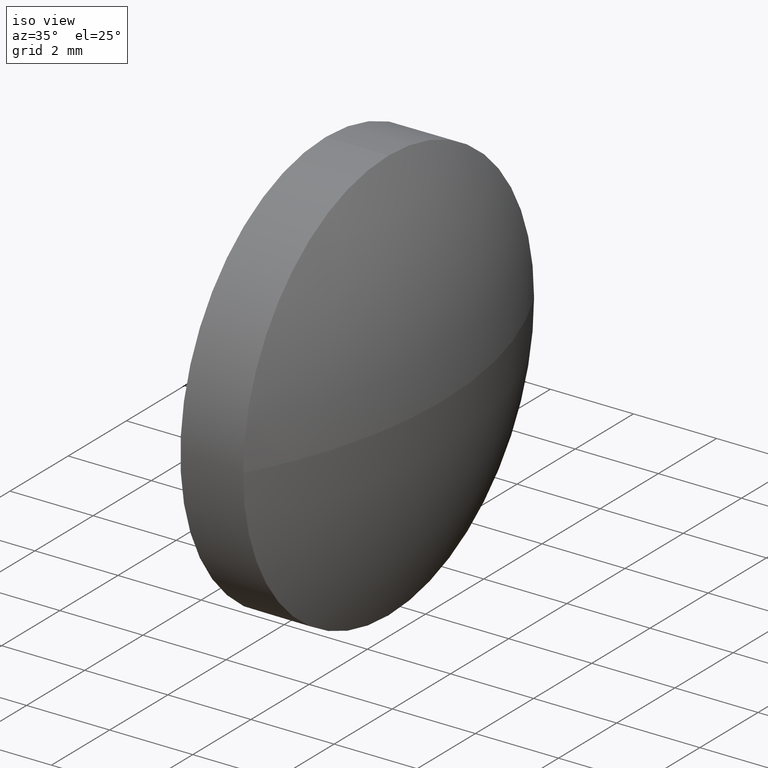
[diagram: clean part render]
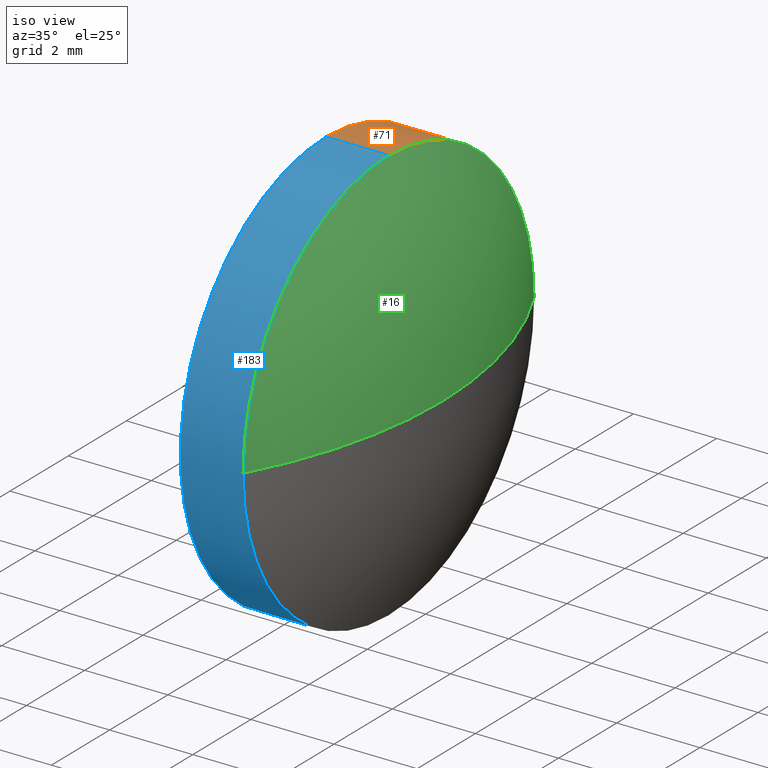
[diagram: same view with three faces highlighted in distinct colors, each labeled with its STEP entity id]
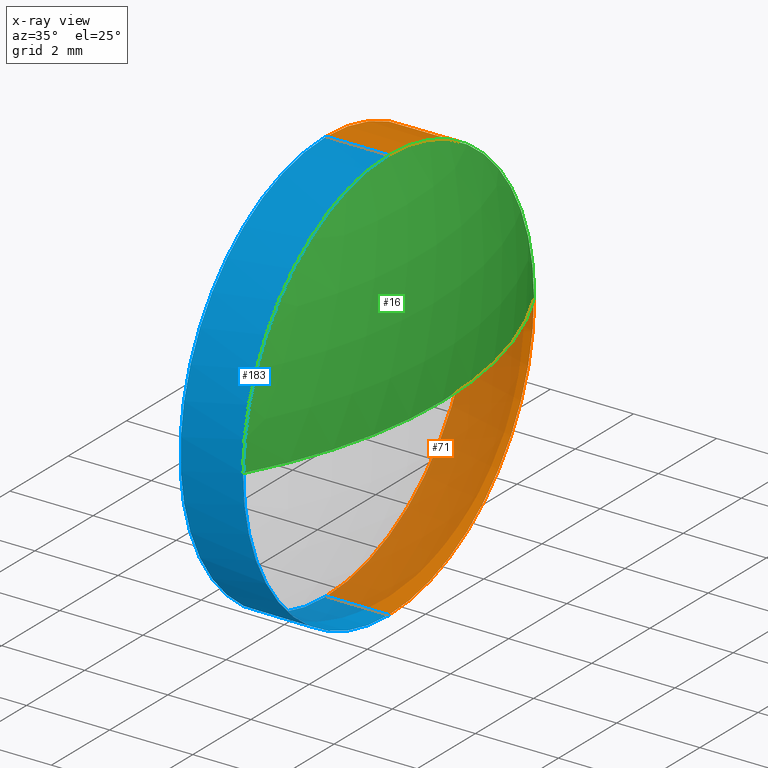
[diagram: x-ray of the same camera — body ghosted, the three highlighted faces saturated]
A machine part, iso view with three faces highlighted in distinct colors.
The next image is the same camera in x-ray (body ghosted, the three faces saturated) — at least one of them is partly hidden behind the body in this view.
Their STEP definitions:

[orange] entity #71 — the highlighted cylindrical surface (partial cylindrical patch) has radius 5 mm, axis along (-1, -0, -0).
#2 = DIRECTION ( 'NONE',  ( -1.000000000000000000, -0.0000000000000000000, -0.0000000000000000000 ) ) ;
#7 = EDGE_CURVE ( 'NONE', #153, #108, #60, .T. ) ;
#9 = ORIENTED_EDGE ( 'NONE', *, *, #114, .T. ) ;
#12 = CYLINDRICAL_SURFACE ( 'NONE', #168, 5.000000000000004400 ) ;
#17 = EDGE_CURVE ( 'NONE', #153, #81, #172, .T. ) ;
#20 = VERTEX_POINT ( 'NONE', #104 ) ;
#22 = ORIENTED_EDGE ( 'NONE', *, *, #7, .T. ) ;
#23 = LINE ( 'NONE', #50, #41 ) ;
#35 = CARTESIAN_POINT ( 'NONE',  ( 491.3935564793571900, 43.15636075815854200, 0.0000000000000000000 ) ) ;
#38 = AXIS2_PLACEMENT_3D ( 'NONE', #68, #109, #77 ) ;
#41 = VECTOR ( 'NONE', #137, 1000.000000000000000 ) ;
#50 = CARTESIAN_POINT ( 'NONE',  ( 491.3935564793571900, 43.15636075815854200, -5.000000000000004400 ) ) ;
#51 = DIRECTION ( 'NONE',  ( -1.000000000000000000, -0.0000000000000000000, -0.0000000000000000000 ) ) ;
#57 = AXIS2_PLACEMENT_3D ( 'NONE', #89, #101, #174 ) ;
#58 = ORIENTED_EDGE ( 'NONE', *, *, #91, .F. ) ;
#60 = CIRCLE ( 'NONE', #57, 5.000000000000004400 ) ;
#64 = CARTESIAN_POINT ( 'NONE',  ( 493.7012287334225700, 43.15636075815854200, 0.0000000000000000000 ) ) ;
#67 = AXIS2_PLACEMENT_3D ( 'NONE', #64, #51, #96 ) ;
#68 = CARTESIAN_POINT ( 'NONE',  ( 492.1912287334225800, 43.15636075815854200, 0.0000000000000000000 ) ) ;
#71 = ADVANCED_FACE ( 'NONE', ( #83 ), #12, .T. ) ;
#76 = EDGE_CURVE ( 'NONE', #108, #20, #79, .T. ) ;
#77 = DIRECTION ( 'NONE',  ( 0.0000000000000000000, 0.0000000000000000000, 1.000000000000000000 ) ) ;
#79 = CIRCLE ( 'NONE', #67, 5.000000000000004400 ) ;
#81 = VERTEX_POINT ( 'NONE', #151 ) ;
#83 = FACE_OUTER_BOUND ( 'NONE', #84, .T. ) ;
#84 = EDGE_LOOP ( 'NONE', ( #146, #9, #58, #185, #22 ) ) ;
#89 = CARTESIAN_POINT ( 'NONE',  ( 493.7012287334225700, 43.15636075815854200, 0.0000000000000000000 ) ) ;
#91 = EDGE_CURVE ( 'NONE', #81, #160, #99, .T. ) ;
#96 = DIRECTION ( 'NONE',  ( 0.0000000000000000000, 0.0000000000000000000, 1.000000000000000000 ) ) ;
#99 = CIRCLE ( 'NONE', #38, 5.000000000000004400 ) ;
#101 = DIRECTION ( 'NONE',  ( -1.000000000000000000, -0.0000000000000000000, -0.0000000000000000000 ) ) ;
#104 = CARTESIAN_POINT ( 'NONE',  ( 493.7012287334225700, 43.15636075815854200, -5.000000000000004400 ) ) ;
#105 = CARTESIAN_POINT ( 'NONE',  ( 493.7012287334225700, 48.15636075815855600, 6.123233995736746600E-016 ) ) ;
#108 = VERTEX_POINT ( 'NONE', #105 ) ;
#109 = DIRECTION ( 'NONE',  ( -1.000000000000000000, -0.0000000000000000000, -0.0000000000000000000 ) ) ;
#114 = EDGE_CURVE ( 'NONE', #20, #160, #23, .T. ) ;
#118 = CARTESIAN_POINT ( 'NONE',  ( 491.3935564793571900, 43.15636075815854200, 5.000000000000004400 ) ) ;
#122 = DIRECTION ( 'NONE',  ( 0.0000000000000000000, 0.0000000000000000000, 1.000000000000000000 ) ) ;
#123 = CARTESIAN_POINT ( 'NONE',  ( 493.7012287334225700, 43.15636075815854200, 5.000000000000004400 ) ) ;
#137 = DIRECTION ( 'NONE',  ( -1.000000000000000000, -0.0000000000000000000, -0.0000000000000000000 ) ) ;
#146 = ORIENTED_EDGE ( 'NONE', *, *, #76, .T. ) ;
#150 = CARTESIAN_POINT ( 'NONE',  ( 492.1912287334225800, 43.15636075815854200, -5.000000000000004400 ) ) ;
#151 = CARTESIAN_POINT ( 'NONE',  ( 492.1912287334225800, 43.15636075815854200, 5.000000000000004400 ) ) ;
#153 = VERTEX_POINT ( 'NONE', #123 ) ;
#160 = VERTEX_POINT ( 'NONE', #150 ) ;
#161 = VECTOR ( 'NONE', #2, 1000.000000000000000 ) ;
#167 = DIRECTION ( 'NONE',  ( -1.000000000000000000, -0.0000000000000000000, -0.0000000000000000000 ) ) ;
#168 = AXIS2_PLACEMENT_3D ( 'NONE', #35, #167, #122 ) ;
#172 = LINE ( 'NONE', #118, #161 ) ;
#174 = DIRECTION ( 'NONE',  ( 0.0000000000000000000, 0.0000000000000000000, 1.000000000000000000 ) ) ;
#185 = ORIENTED_EDGE ( 'NONE', *, *, #17, .F. ) ;

[blue] entity #183 — the highlighted cylindrical surface (partial cylindrical patch) has radius 5 mm, axis along (-1, -0, -0).
#2 = DIRECTION ( 'NONE',  ( -1.000000000000000000, -0.0000000000000000000, -0.0000000000000000000 ) ) ;
#3 = DIRECTION ( 'NONE',  ( 0.0000000000000000000, 0.0000000000000000000, 1.000000000000000000 ) ) ;
#10 = EDGE_CURVE ( 'NONE', #20, #157, #158, .T. ) ;
#17 = EDGE_CURVE ( 'NONE', #153, #81, #172, .T. ) ;
#20 = VERTEX_POINT ( 'NONE', #104 ) ;
#23 = LINE ( 'NONE', #50, #41 ) ;
#25 = AXIS2_PLACEMENT_3D ( 'NONE', #186, #131, #44 ) ;
#31 = AXIS2_PLACEMENT_3D ( 'NONE', #138, #169, #3 ) ;
#40 = FACE_OUTER_BOUND ( 'NONE', #110, .T. ) ;
#41 = VECTOR ( 'NONE', #137, 1000.000000000000000 ) ;
#43 = CIRCLE ( 'NONE', #98, 5.000000000000004400 ) ;
#44 = DIRECTION ( 'NONE',  ( 0.0000000000000000000, 0.0000000000000000000, 1.000000000000000000 ) ) ;
#50 = CARTESIAN_POINT ( 'NONE',  ( 491.3935564793571900, 43.15636075815854200, -5.000000000000004400 ) ) ;
#54 = EDGE_CURVE ( 'NONE', #157, #153, #165, .T. ) ;
#62 = DIRECTION ( 'NONE',  ( -1.000000000000000000, -0.0000000000000000000, -0.0000000000000000000 ) ) ;
#66 = DIRECTION ( 'NONE',  ( 0.0000000000000000000, 0.0000000000000000000, 1.000000000000000000 ) ) ;
#72 = ORIENTED_EDGE ( 'NONE', *, *, #54, .T. ) ;
#81 = VERTEX_POINT ( 'NONE', #151 ) ;
#85 = AXIS2_PLACEMENT_3D ( 'NONE', #184, #62, #132 ) ;
#98 = AXIS2_PLACEMENT_3D ( 'NONE', #180, #134, #66 ) ;
#103 = CYLINDRICAL_SURFACE ( 'NONE', #31, 5.000000000000004400 ) ;
#104 = CARTESIAN_POINT ( 'NONE',  ( 493.7012287334225700, 43.15636075815854200, -5.000000000000004400 ) ) ;
#110 = EDGE_LOOP ( 'NONE', ( #171, #111, #72, #113, #144 ) ) ;
#111 = ORIENTED_EDGE ( 'NONE', *, *, #10, .T. ) ;
#113 = ORIENTED_EDGE ( 'NONE', *, *, #17, .T. ) ;
#114 = EDGE_CURVE ( 'NONE', #20, #160, #23, .T. ) ;
#118 = CARTESIAN_POINT ( 'NONE',  ( 491.3935564793571900, 43.15636075815854200, 5.000000000000004400 ) ) ;
#123 = CARTESIAN_POINT ( 'NONE',  ( 493.7012287334225700, 43.15636075815854200, 5.000000000000004400 ) ) ;
#131 = DIRECTION ( 'NONE',  ( -1.000000000000000000, -0.0000000000000000000, -0.0000000000000000000 ) ) ;
#132 = DIRECTION ( 'NONE',  ( 0.0000000000000000000, 0.0000000000000000000, 1.000000000000000000 ) ) ;
#134 = DIRECTION ( 'NONE',  ( -1.000000000000000000, -0.0000000000000000000, -0.0000000000000000000 ) ) ;
#137 = DIRECTION ( 'NONE',  ( -1.000000000000000000, -0.0000000000000000000, -0.0000000000000000000 ) ) ;
#138 = CARTESIAN_POINT ( 'NONE',  ( 491.3935564793571900, 43.15636075815854200, 0.0000000000000000000 ) ) ;
#144 = ORIENTED_EDGE ( 'NONE', *, *, #177, .F. ) ;
#150 = CARTESIAN_POINT ( 'NONE',  ( 492.1912287334225800, 43.15636075815854200, -5.000000000000004400 ) ) ;
#151 = CARTESIAN_POINT ( 'NONE',  ( 492.1912287334225800, 43.15636075815854200, 5.000000000000004400 ) ) ;
#153 = VERTEX_POINT ( 'NONE', #123 ) ;
#157 = VERTEX_POINT ( 'NONE', #170 ) ;
#158 = CIRCLE ( 'NONE', #85, 5.000000000000004400 ) ;
#160 = VERTEX_POINT ( 'NONE', #150 ) ;
#161 = VECTOR ( 'NONE', #2, 1000.000000000000000 ) ;
#165 = CIRCLE ( 'NONE', #25, 5.000000000000004400 ) ;
#169 = DIRECTION ( 'NONE',  ( -1.000000000000000000, -0.0000000000000000000, -0.0000000000000000000 ) ) ;
#170 = CARTESIAN_POINT ( 'NONE',  ( 493.7012287334225700, 38.15636075815854900, 0.0000000000000000000 ) ) ;
#171 = ORIENTED_EDGE ( 'NONE', *, *, #114, .F. ) ;
#172 = LINE ( 'NONE', #118, #161 ) ;
#177 = EDGE_CURVE ( 'NONE', #160, #81, #43, .T. ) ;
#180 = CARTESIAN_POINT ( 'NONE',  ( 492.1912287334225800, 43.15636075815854200, 0.0000000000000000000 ) ) ;
#183 = ADVANCED_FACE ( 'NONE', ( #40 ), #103, .T. ) ;
#184 = CARTESIAN_POINT ( 'NONE',  ( 493.7012287334225700, 43.15636075815854200, 0.0000000000000000000 ) ) ;
#186 = CARTESIAN_POINT ( 'NONE',  ( 493.7012287334225700, 43.15636075815854200, 0.0000000000000000000 ) ) ;

[green] entity #16 — the highlighted spherical surface has radius 10.3349 mm.
#5 = FACE_OUTER_BOUND ( 'NONE', #127, .T. ) ;
#7 = EDGE_CURVE ( 'NONE', #153, #108, #60, .T. ) ;
#16 = ADVANCED_FACE ( 'NONE', ( #5 ), #156, .T. ) ;
#25 = AXIS2_PLACEMENT_3D ( 'NONE', #186, #131, #44 ) ;
#27 = CARTESIAN_POINT ( 'NONE',  ( 484.6563062528024400, 43.15636075815857700, 0.0000000000000000000 ) ) ;
#29 = EDGE_CURVE ( 'NONE', #133, #157, #88, .T. ) ;
#37 = CARTESIAN_POINT ( 'NONE',  ( 494.9912287334225900, 43.15636075815857700, 0.0000000000000000000 ) ) ;
#44 = DIRECTION ( 'NONE',  ( 0.0000000000000000000, 0.0000000000000000000, 1.000000000000000000 ) ) ;
#47 = ORIENTED_EDGE ( 'NONE', *, *, #54, .F. ) ;
#54 = EDGE_CURVE ( 'NONE', #157, #153, #165, .T. ) ;
#57 = AXIS2_PLACEMENT_3D ( 'NONE', #89, #101, #174 ) ;
#60 = CIRCLE ( 'NONE', #57, 5.000000000000004400 ) ;
#61 = CARTESIAN_POINT ( 'NONE',  ( 484.6563062528024400, 43.15636075815857700, 0.0000000000000000000 ) ) ;
#73 = AXIS2_PLACEMENT_3D ( 'NONE', #27, #136, #139 ) ;
#86 = CARTESIAN_POINT ( 'NONE',  ( 484.6563062528024400, 43.15636075815857700, 0.0000000000000000000 ) ) ;
#88 = CIRCLE ( 'NONE', #100, 10.33492248062017900 ) ;
#89 = CARTESIAN_POINT ( 'NONE',  ( 493.7012287334225700, 43.15636075815854200, 0.0000000000000000000 ) ) ;
#90 = DIRECTION ( 'NONE',  ( 0.0000000000000000000, 0.0000000000000000000, 1.000000000000000000 ) ) ;
#92 = ORIENTED_EDGE ( 'NONE', *, *, #29, .F. ) ;
#97 = ORIENTED_EDGE ( 'NONE', *, *, #7, .F. ) ;
#100 = AXIS2_PLACEMENT_3D ( 'NONE', #61, #159, #115 ) ;
#101 = DIRECTION ( 'NONE',  ( -1.000000000000000000, -0.0000000000000000000, -0.0000000000000000000 ) ) ;
#105 = CARTESIAN_POINT ( 'NONE',  ( 493.7012287334225700, 48.15636075815855600, 6.123233995736746600E-016 ) ) ;
#108 = VERTEX_POINT ( 'NONE', #105 ) ;
#115 = DIRECTION ( 'NONE',  ( -1.000000000000000000, 0.0000000000000000000, 0.0000000000000000000 ) ) ;
#123 = CARTESIAN_POINT ( 'NONE',  ( 493.7012287334225700, 43.15636075815854200, 5.000000000000004400 ) ) ;
#124 = ORIENTED_EDGE ( 'NONE', *, *, #143, .T. ) ;
#127 = EDGE_LOOP ( 'NONE', ( #92, #124, #97, #47 ) ) ;
#130 = AXIS2_PLACEMENT_3D ( 'NONE', #86, #90, #175 ) ;
#131 = DIRECTION ( 'NONE',  ( -1.000000000000000000, -0.0000000000000000000, -0.0000000000000000000 ) ) ;
#133 = VERTEX_POINT ( 'NONE', #37 ) ;
#136 = DIRECTION ( 'NONE',  ( 0.0000000000000000000, -1.224646799147353200E-016, 1.000000000000000000 ) ) ;
#139 = DIRECTION ( 'NONE',  ( 0.0000000000000000000, -1.000000000000000000, -1.224646799147353200E-016 ) ) ;
#140 = CIRCLE ( 'NONE', #73, 10.33492248062016500 ) ;
#143 = EDGE_CURVE ( 'NONE', #133, #108, #140, .T. ) ;
#153 = VERTEX_POINT ( 'NONE', #123 ) ;
#156 = SPHERICAL_SURFACE ( 'NONE', #130, 10.33492248062016500 ) ;
#157 = VERTEX_POINT ( 'NONE', #170 ) ;
#159 = DIRECTION ( 'NONE',  ( 0.0000000000000000000, 0.0000000000000000000, -1.000000000000000000 ) ) ;
#165 = CIRCLE ( 'NONE', #25, 5.000000000000004400 ) ;
#170 = CARTESIAN_POINT ( 'NONE',  ( 493.7012287334225700, 38.15636075815854900, 0.0000000000000000000 ) ) ;
#174 = DIRECTION ( 'NONE',  ( 0.0000000000000000000, 0.0000000000000000000, 1.000000000000000000 ) ) ;
#175 = DIRECTION ( 'NONE',  ( 0.0000000000000000000, -1.000000000000000000, 0.0000000000000000000 ) ) ;
#186 = CARTESIAN_POINT ( 'NONE',  ( 493.7012287334225700, 43.15636075815854200, 0.0000000000000000000 ) ) ;